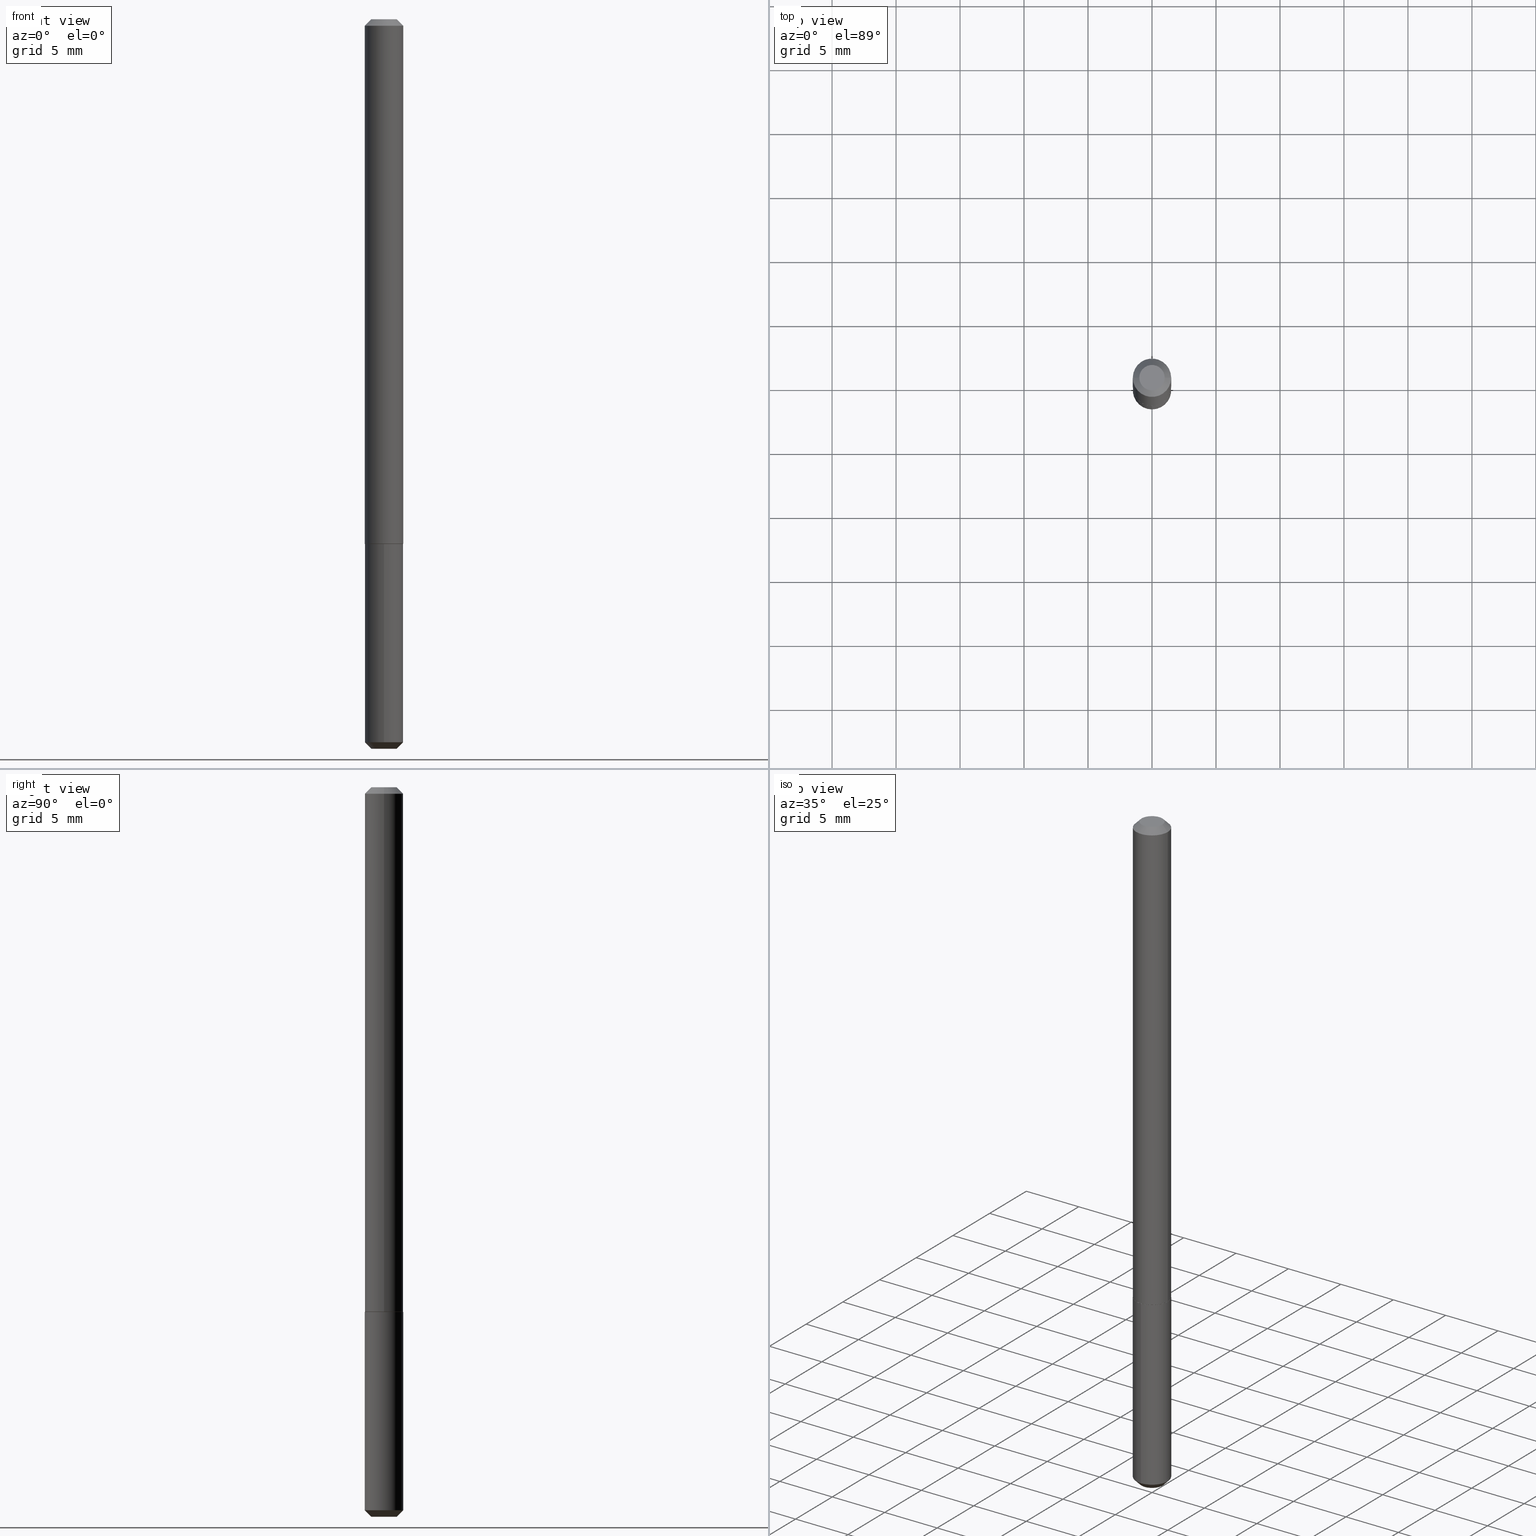
[diagram: canonical four-view strip — front | top / right | iso, engineering-drawing reading convention]
A machine part, canonical four-view strip (front | top / right | iso — engineering-drawing reading convention). The complete STEP part file that produces these views, byte-faithful:
ISO-10303-21;
HEADER;
FILE_DESCRIPTION (( 'STEP AP203' ),
    '1' );
FILE_NAME ('81009.STEP',
    '2024-04-19T13:36:22',
    ( '' ),
    ( '' ),
    'SwSTEP 2.0',
    'SolidWorks 2023',
    '' );
FILE_SCHEMA (( 'CONFIG_CONTROL_DESIGN' ));
ENDSEC;

DATA;
#1 = ORIENTED_EDGE ( 'NONE', *, *, #39, .F. ) ;
#2 = EDGE_CURVE ( 'NONE', #263, #289, #342, .T. ) ;
#3 = CARTESIAN_POINT ( 'NONE',  ( 0.05855000000000011584, -6.044801641939135704E-15, -1.614199999999999413 ) ) ;
#4 = CONICAL_SURFACE ( 'NONE', #132, 0.05904999999999999832, 0.7853981633974468357 ) ;
#5 = CARTESIAN_POINT ( 'NONE',  ( 5.487876547960064752E-29, -7.835233272497902340E-15, -2.244099999999999984 ) ) ;
#6 = CARTESIAN_POINT ( 'NONE',  ( 0.05905000000000018567, -6.046547382608559574E-15, -1.613700000000000134 ) ) ;
#7 = ORGANIZATION ( 'UNSPECIFIED', 'UNSPECIFIED', '' ) ;
#8 = CYLINDRICAL_SURFACE ( 'NONE', #240, 0.05905000000000009547 ) ;
#9 = CIRCLE ( 'NONE', #382, 0.05855000000000011584 ) ;
#10 = EDGE_CURVE ( 'NONE', #20, #60, #349, .T. ) ;
#11 = PERSON_AND_ORGANIZATION_ROLE ( 'design_supplier' ) ;
#12 = CARTESIAN_POINT ( 'NONE',  ( 3.947475746944045709E-29, -5.635949177160603791E-15, -1.614199999999999413 ) ) ;
#13 = EDGE_LOOP ( 'NONE', ( #120, #62, #279, #117 ) ) ;
#14 = COORDINATED_UNIVERSAL_TIME_OFFSET ( 5, 0, .BEHIND. ) ;
#15 = EDGE_LOOP ( 'NONE', ( #329, #169, #213, #18 ) ) ;
#16 = AXIS2_PLACEMENT_3D ( 'NONE', #228, #204, #74 ) ;
#17 = DATE_AND_TIME ( #223, #280 ) ;
#18 = ORIENTED_EDGE ( 'NONE', *, *, #412, .F. ) ;
#19 = DIRECTION ( 'NONE',  ( -6.982962677686265922E-15, -1.000000000000000000, 4.626330217890369336E-15 ) ) ;
#20 = VERTEX_POINT ( 'NONE', #346 ) ;
#21 = CARTESIAN_POINT ( 'NONE',  ( 4.195754854663939737E-16, 0.05904999999999229615, -2.224100000000000410 ) ) ;
#22 = FACE_OUTER_BOUND ( 'NONE', #75, .T. ) ;
#23 = DESIGN_CONTEXT ( 'detailed design', #352, 'design' ) ;
#24 = CONICAL_SURFACE ( 'NONE', #126, 0.05904999999999999832, 0.7853981633974449483 ) ;
#25 = CARTESIAN_POINT ( 'NONE',  ( 0.000000000000000000, 0.000000000000000000, 0.000000000000000000 ) ) ;
#26 = DIRECTION ( 'NONE',  ( -2.445468806185136597E-29, 3.491481338843145583E-15, 1.000000000000000000 ) ) ;
#27 = PLANE ( 'NONE',  #393 ) ;
#28 = EDGE_CURVE ( 'NONE', #315, #79, #317, .T. ) ;
#29 = DIRECTION ( 'NONE',  ( -2.438088387897960049E-29, 3.491481338843145188E-15, 1.000000000000000000 ) ) ;
#30 = APPROVAL_STATUS ( 'not_yet_approved' ) ;
#31 = ORIENTED_EDGE ( 'NONE', *, *, #2, .F. ) ;
#32 = LOCAL_TIME ( 9, 36, 22.00000000000000000, #238 ) ;
#33 = DIRECTION ( 'NONE',  ( -2.445468806185136877E-29, 3.491481338843145188E-15, 1.000000000000000000 ) ) ;
#34 = VERTEX_POINT ( 'NONE', #409 ) ;
#35 = PERSON_AND_ORGANIZATION ( #249, #7 ) ;
#36 = DIRECTION ( 'NONE',  ( -2.446576090179258832E-29, 3.489895645140871787E-15, 1.000000000000000000 ) ) ;
#37 = ORIENTED_EDGE ( 'NONE', *, *, #227, .T. ) ;
#38 = ADVANCED_FACE ( 'NONE', ( #110 ), #49, .T. ) ;
#39 = EDGE_CURVE ( 'NONE', #315, #289, #283, .T. ) ;
#40 = DIRECTION ( 'NONE',  ( 1.000000000000000000, -6.982962677686266711E-15, 0.000000000000000000 ) ) ;
#41 = DIRECTION ( 'NONE',  ( 1.000000000000000000, -6.982962677686266711E-15, 0.000000000000000000 ) ) ;
#42 = VECTOR ( 'NONE', #33, 39.37007874015748143 ) ;
#43 = PERSON_AND_ORGANIZATION ( #249, #7 ) ;
#44 = VERTEX_POINT ( 'NONE', #219 ) ;
#45 = ADVANCED_FACE ( 'NONE', ( #70 ), #8, .T. ) ;
#46 = COORDINATED_UNIVERSAL_TIME_OFFSET ( 5, 0, .BEHIND. ) ;
#47 = ORIENTED_EDGE ( 'NONE', *, *, #397, .T. ) ;
#48 = DIRECTION ( 'NONE',  ( -2.446576090179258832E-29, 3.489895645140871393E-15, 1.000000000000000000 ) ) ;
#49 = CONICAL_SURFACE ( 'NONE', #114, 0.05904999999999999832, 0.7853981633974468357 ) ;
#50 = DIRECTION ( 'NONE',  ( -2.446576090179258832E-29, 3.489895645140871393E-15, 1.000000000000000000 ) ) ;
#51 = APPROVAL_ROLE ( '' ) ;
#52 = CARTESIAN_POINT ( 'NONE',  ( 4.890937612370306439E-31, -6.982962677686338448E-17, -0.02000000000000013572 ) ) ;
#53 = DIRECTION ( 'NONE',  ( -2.446576090179258832E-29, 3.489895645140871393E-15, 1.000000000000000000 ) ) ;
#54 = ORIENTED_EDGE ( 'NONE', *, *, #39, .T. ) ;
#55 = CC_DESIGN_PERSON_AND_ORGANIZATION_ASSIGNMENT ( #193, #325, ( #66 ) ) ;
#56 = AXIS2_PLACEMENT_3D ( 'NONE', #129, #319, #41 ) ;
#57 = FACE_OUTER_BOUND ( 'NONE', #83, .T. ) ;
#58 = CIRCLE ( 'NONE', #372, 0.05904999999999999832 ) ;
#59 = APPROVAL_ROLE ( '' ) ;
#60 = VERTEX_POINT ( 'NONE', #339 ) ;
#61 = CARTESIAN_POINT ( 'NONE',  ( -0.05855000000000011584, -5.217277178198954785E-15, -1.614199999999999413 ) ) ;
#62 = ORIENTED_EDGE ( 'NONE', *, *, #109, .T. ) ;
#63 = DIRECTION ( 'NONE',  ( -2.446576090179258832E-29, 3.489895645140871393E-15, 1.000000000000000000 ) ) ;
#64 = ORIENTED_EDGE ( 'NONE', *, *, #377, .T. ) ;
#65 = CARTESIAN_POINT ( 'NONE',  ( 3.946253012540955150E-29, -5.634203436491184654E-15, -1.613700000000000134 ) ) ;
#66 = SECURITY_CLASSIFICATION ( '', '', #128 ) ;
#67 = EDGE_CURVE ( 'NONE', #244, #79, #307, .T. ) ;
#68 = CARTESIAN_POINT ( 'NONE',  ( 3.946253012540955150E-29, -5.634203436491184654E-15, -1.613700000000000134 ) ) ;
#69 = CLOSED_SHELL ( 'NONE', ( #245, #384, #38, #184, #72, #357 ) ) ;
#70 = FACE_OUTER_BOUND ( 'NONE', #235, .T. ) ;
#71 = PERSON_AND_ORGANIZATION ( #249, #7 ) ;
#72 = ADVANCED_FACE ( 'NONE', ( #267 ), #371, .F. ) ;
#73 = APPROVAL_DATE_TIME ( #297, #121 ) ;
#74 = DIRECTION ( 'NONE',  ( 6.982962677686265922E-15, 1.000000000000000000, -3.489895645140871787E-15 ) ) ;
#75 = EDGE_LOOP ( 'NONE', ( #306, #239, #54, #396 ) ) ;
#76 = CC_DESIGN_SECURITY_CLASSIFICATION ( #66, ( #91 ) ) ;
#77 = FACE_OUTER_BOUND ( 'NONE', #13, .T. ) ;
#78 = DATE_AND_TIME ( #403, #398 ) ;
#79 = VERTEX_POINT ( 'NONE', #261 ) ;
#80 = CARTESIAN_POINT ( 'NONE',  ( 3.947475746944047390E-29, -5.635949177160606158E-15, -1.614199999999999857 ) ) ;
#81 = ORIENTED_EDGE ( 'NONE', *, *, #397, .F. ) ;
#82 = CARTESIAN_POINT ( 'NONE',  ( 3.946253012540955150E-29, -5.634203436491184654E-15, -1.613700000000000134 ) ) ;
#83 = EDGE_LOOP ( 'NONE', ( #47, #233, #197, #387 ) ) ;
#84 = DIRECTION ( 'NONE',  ( -2.446576090179258832E-29, 3.489895645140871393E-15, 1.000000000000000000 ) ) ;
#85 = EDGE_LOOP ( 'NONE', ( #203, #324, #146, #383 ) ) ;
#86 = CARTESIAN_POINT ( 'NONE',  ( 0.03905000000000000138, -3.714222401791253338E-16, -1.206277097157893987E-18 ) ) ;
#87 = DATE_AND_TIME ( #376, #285 ) ;
#88 = PRODUCT_DEFINITION ( 'UNKNOWN', '', #91, #23 ) ;
#89 = CARTESIAN_POINT ( 'NONE',  ( -4.123439461173344910E-16, -0.05905000000000563271, -1.614199999999999635 ) ) ;
#90 = EDGE_LOOP ( 'NONE', ( #139, #105 ) ) ;
#91 = PRODUCT_DEFINITION_FORMATION_WITH_SPECIFIED_SOURCE ( 'ANY', '', #284, .NOT_KNOWN. ) ;
#92 = ADVANCED_FACE ( 'NONE', ( #208 ), #144, .F. ) ;
#93 =( CONVERSION_BASED_UNIT ( 'INCH', #392 ) LENGTH_UNIT ( ) NAMED_UNIT ( #308 ) );
#94 = AXIS2_PLACEMENT_3D ( 'NONE', #82, #413, #113 ) ;
#95 = PRODUCT_DEFINITION_SHAPE ( 'NONE', 'NONE',  #88 ) ;
#96 = ADVANCED_FACE ( 'NONE', ( #273 ), #27, .F. ) ;
#97 = COORDINATED_UNIVERSAL_TIME_OFFSET ( 5, 0, .BEHIND. ) ;
#98 = AXIS2_PLACEMENT_3D ( 'NONE', #5, #123, #353 ) ;
#99 = AXIS2_PLACEMENT_3D ( 'NONE', #25, #264, #405 ) ;
#100 = PERSON_AND_ORGANIZATION_ROLE ( 'creator' ) ;
#101 = DIRECTION ( 'NONE',  ( -2.445468806185136597E-29, 3.491481338843145583E-15, 1.000000000000000000 ) ) ;
#102 = EDGE_LOOP ( 'NONE', ( #81, #309 ) ) ;
#103 = FACE_OUTER_BOUND ( 'NONE', #15, .T. ) ;
#104 = DATE_TIME_ROLE ( 'creation_date' ) ;
#105 = ORIENTED_EDGE ( 'NONE', *, *, #156, .T. ) ;
#106 = DIRECTION ( 'NONE',  ( 5.024295867788054501E-15, 0.7071067811865489050, 0.7071067811865461294 ) ) ;
#107 = AXIS2_PLACEMENT_3D ( 'NONE', #226, #361, #224 ) ;
#108 = DIRECTION ( 'NONE',  ( -2.445468806185136597E-29, 3.491481338843145583E-15, 1.000000000000000000 ) ) ;
#109 = EDGE_CURVE ( 'NONE', #277, #44, #354, .T. ) ;
#110 = FACE_OUTER_BOUND ( 'NONE', #130, .T. ) ;
#111 = DIRECTION ( 'NONE',  ( -0.7071067811870545006, 7.493145998872185895E-15, 0.7071067811860405339 ) ) ;
#112 = ORIENTED_EDGE ( 'NONE', *, *, #366, .F. ) ;
#113 = DIRECTION ( 'NONE',  ( 1.000000000000000000, -6.982962677686266711E-15, 0.000000000000000000 ) ) ;
#114 = AXIS2_PLACEMENT_3D ( 'NONE', #302, #368, #217 ) ;
#115 = CALENDAR_DATE ( 2024, 19, 4 ) ;
#116 = DIRECTION ( 'NONE',  ( -0.7071067811865451302, 2.468850131082231817E-15, -0.7071067811865499042 ) ) ;
#117 = ORIENTED_EDGE ( 'NONE', *, *, #156, .F. ) ;
#118 = DIRECTION ( 'NONE',  ( -2.445468806185136597E-29, 3.491481338843145583E-15, 1.000000000000000000 ) ) ;
#119 = CARTESIAN_POINT ( 'NONE',  ( 5.439642504344377685E-29, -7.764436531132022734E-15, -2.224099999999999966 ) ) ;
#120 = ORIENTED_EDGE ( 'NONE', *, *, #391, .F. ) ;
#121 = APPROVAL ( #334, 'UNSPECIFIED' ) ;
#122 = CONICAL_SURFACE ( 'NONE', #363, 0.05904999999999999832, 0.7853981633974449483 ) ;
#123 = DIRECTION ( 'NONE',  ( -2.446576090179258272E-29, 3.489895645140871787E-15, 1.000000000000000000 ) ) ;
#124 = MANIFOLD_SOLID_BREP ( 'Body-Move/Copy2[2]', #406 ) ;
#125 = DIRECTION ( 'NONE',  ( -2.445468806185136877E-29, 3.491481338843145188E-15, 1.000000000000000000 ) ) ;
#126 = AXIS2_PLACEMENT_3D ( 'NONE', #291, #258, #135 ) ;
#127 = VECTOR ( 'NONE', #106, 39.37007874015748143 ) ;
#128 = SECURITY_CLASSIFICATION_LEVEL ( 'unclassified' ) ;
#129 = CARTESIAN_POINT ( 'NONE',  ( 4.890937612370306439E-31, -6.982962677686338448E-17, -0.02000000000000013572 ) ) ;
#130 = EDGE_LOOP ( 'NONE', ( #326, #161, #37, #230 ) ) ;
#131 = EDGE_CURVE ( 'NONE', #335, #177, #218, .T. ) ;
#132 = AXIS2_PLACEMENT_3D ( 'NONE', #119, #242, #386 ) ;
#133 = AXIS2_PLACEMENT_3D ( 'NONE', #212, #151, #300 ) ;
#134 = COORDINATED_UNIVERSAL_TIME_OFFSET ( 5, 0, .BEHIND. ) ;
#135 = DIRECTION ( 'NONE',  ( -1.000000000000000000, 6.982962677686266711E-15, 0.000000000000000000 ) ) ;
#136 = EDGE_LOOP ( 'NONE', ( #378, #243, #164, #112 ) ) ;
#137 = LINE ( 'NONE', #402, #281 ) ;
#138 = PERSON_AND_ORGANIZATION_ROLE ( 'design_owner' ) ;
#139 = ORIENTED_EDGE ( 'NONE', *, *, #131, .T. ) ;
#140 = CYLINDRICAL_SURFACE ( 'NONE', #99, 0.05905000000000009547 ) ;
#141 = CIRCLE ( 'NONE', #350, 0.05855000000000011584 ) ;
#142 = AXIS2_PLACEMENT_3D ( 'NONE', #174, #50, #167 ) ;
#143 = ADVANCED_FACE ( 'NONE', ( #57 ), #275, .T. ) ;
#144 = PLANE ( 'NONE',  #248 ) ;
#145 = APPROVAL_PERSON_ORGANIZATION ( #71, #121, #51 ) ;
#146 = ORIENTED_EDGE ( 'NONE', *, *, #207, .T. ) ;
#147 = LINE ( 'NONE', #375, #127 ) ;
#148 = SHAPE_DEFINITION_REPRESENTATION ( #95, #154 ) ;
#149 = DIRECTION ( 'NONE',  ( -2.446576090179258832E-29, 3.489895645140871393E-15, 1.000000000000000000 ) ) ;
#150 = ORIENTED_EDGE ( 'NONE', *, *, #311, .F. ) ;
#151 = DIRECTION ( 'NONE',  ( -2.446576090179258832E-29, 3.489895645140871393E-15, 1.000000000000000000 ) ) ;
#152 = DATE_AND_TIME ( #115, #32 ) ;
#153 = ORIENTED_EDGE ( 'NONE', *, *, #170, .T. ) ;
#154 = ADVANCED_BREP_SHAPE_REPRESENTATION ( '81009', ( #259, #124, #222 ), #299 ) ;
#155 = PLANE ( 'NONE',  #98 ) ;
#156 = EDGE_CURVE ( 'NONE', #177, #335, #312, .T. ) ;
#157 = AXIS2_PLACEMENT_3D ( 'NONE', #80, #149, #296 ) ;
#158 = CIRCLE ( 'NONE', #182, 0.03905000000000000138 ) ;
#159 = PERSON_AND_ORGANIZATION ( #249, #7 ) ;
#160 = EDGE_LOOP ( 'NONE', ( #31, #150, #64, #348 ) ) ;
#161 = ORIENTED_EDGE ( 'NONE', *, *, #10, .T. ) ;
#162 = DIRECTION ( 'NONE',  ( 0.000000000000000000, 0.000000000000000000, 1.000000000000000000 ) ) ;
#163 = FACE_OUTER_BOUND ( 'NONE', #85, .T. ) ;
#164 = ORIENTED_EDGE ( 'NONE', *, *, #338, .T. ) ;
#165 = DIRECTION ( 'NONE',  ( 1.000000000000000000, -6.982962677686266711E-15, 0.000000000000000000 ) ) ;
#166 = EDGE_LOOP ( 'NONE', ( #288, #153, #205, #400 ) ) ;
#167 = DIRECTION ( 'NONE',  ( -6.982962677686265922E-15, -1.000000000000000000, 4.626330217890369336E-15 ) ) ;
#168 = CALENDAR_DATE ( 2024, 19, 4 ) ;
#169 = ORIENTED_EDGE ( 'NONE', *, *, #391, .T. ) ;
#170 = EDGE_CURVE ( 'NONE', #20, #277, #147, .T. ) ;
#171 = DIRECTION ( 'NONE',  ( 1.000000000000000000, -6.982962677686266711E-15, 4.876176775795935232E-29 ) ) ;
#172 = CARTESIAN_POINT ( 'NONE',  ( 0.05904999999999999832, -4.749420335452723636E-16, -0.02000000000000013572 ) ) ;
#173 = VECTOR ( 'NONE', #189, 39.37007874015748143 ) ;
#174 = CARTESIAN_POINT ( 'NONE',  ( 3.947475746944047390E-29, -5.635949177160606158E-15, -1.614199999999999857 ) ) ;
#175 = CYLINDRICAL_SURFACE ( 'NONE', #181, 0.05904999999999999832 ) ;
#176 = APPROVAL ( #290, 'UNSPECIFIED' ) ;
#177 = VERTEX_POINT ( 'NONE', #234 ) ;
#178 = CARTESIAN_POINT ( 'NONE',  ( 5.439642504344377685E-29, -7.764436531132022734E-15, -2.224099999999999966 ) ) ;
#179 = LINE ( 'NONE', #183, #190 ) ;
#180 = ORIENTED_EDGE ( 'NONE', *, *, #282, .T. ) ;
#181 = AXIS2_PLACEMENT_3D ( 'NONE', #241, #48, #408 ) ;
#182 = AXIS2_PLACEMENT_3D ( 'NONE', #225, #367, #196 ) ;
#183 = CARTESIAN_POINT ( 'NONE',  ( -0.05904999999999999832, 3.425143193405106359E-16, -0.02000000000000013572 ) ) ;
#184 = ADVANCED_FACE ( 'NONE', ( #77 ), #175, .T. ) ;
#185 = APPLICATION_CONTEXT ( 'configuration controlled 3d designs of mechanical parts and assemblies' ) ;
#186 = CIRCLE ( 'NONE', #56, 0.05904999999999999832 ) ;
#187 = AXIS2_PLACEMENT_3D ( 'NONE', #65, #26, #269 ) ;
#188 = CC_DESIGN_PERSON_AND_ORGANIZATION_ASSIGNMENT ( #265, #100, ( #88 ) ) ;
#189 = DIRECTION ( 'NONE',  ( 0.7071067811870545006, -2.468850131087567278E-15, 0.7071067811860405339 ) ) ;
#190 = VECTOR ( 'NONE', #116, 39.37007874015748143 ) ;
#191 = APPROVAL_PERSON_ORGANIZATION ( #35, #316, #59 ) ;
#192 = CC_DESIGN_DATE_AND_TIME_ASSIGNMENT ( #78, #104, ( #88 ) ) ;
#193 = PERSON_AND_ORGANIZATION ( #249, #7 ) ;
#194 = ORIENTED_EDGE ( 'NONE', *, *, #351, .F. ) ;
#195 = CARTESIAN_POINT ( 'NONE',  ( 0.000000000000000000, 0.000000000000000000, 0.000000000000000000 ) ) ;
#196 = DIRECTION ( 'NONE',  ( 1.000000000000000000, -6.982962677686266711E-15, 4.876134546707175362E-29 ) ) ;
#197 = ORIENTED_EDGE ( 'NONE', *, *, #28, .F. ) ;
#198 = DIRECTION ( 'NONE',  ( 1.000000000000000000, -6.982962677686265922E-15, 4.876176775795935793E-29 ) ) ;
#199 = FACE_OUTER_BOUND ( 'NONE', #272, .T. ) ;
#200 = VECTOR ( 'NONE', #125, 39.37007874015748143 ) ;
#201 = DIRECTION ( 'NONE',  ( -2.446576090179258832E-29, 3.489895645140871393E-15, 1.000000000000000000 ) ) ;
#202 = FACE_OUTER_BOUND ( 'NONE', #160, .T. ) ;
#203 = ORIENTED_EDGE ( 'NONE', *, *, #282, .F. ) ;
#204 = DIRECTION ( 'NONE',  ( 2.446576090179258272E-29, -3.489895645140871787E-15, -1.000000000000000000 ) ) ;
#205 = ORIENTED_EDGE ( 'NONE', *, *, #268, .F. ) ;
#206 = LOCAL_TIME ( 9, 36, 22.00000000000000000, #14 ) ;
#207 = EDGE_CURVE ( 'NONE', #289, #34, #58, .T. ) ;
#208 = FACE_OUTER_BOUND ( 'NONE', #102, .T. ) ;
#209 = EDGE_LOOP ( 'NONE', ( #374, #180 ) ) ;
#210 = DIRECTION ( 'NONE',  ( -6.982962677686265922E-15, -1.000000000000000000, 4.626330217890369336E-15 ) ) ;
#211 = LINE ( 'NONE', #246, #215 ) ;
#212 = CARTESIAN_POINT ( 'NONE',  ( 5.488574026147962924E-29, -7.834234444034840012E-15, -2.244099999999999984 ) ) ;
#213 = ORIENTED_EDGE ( 'NONE', *, *, #131, .F. ) ;
#214 = APPROVAL_PERSON_ORGANIZATION ( #399, #176, #221 ) ;
#215 = VECTOR ( 'NONE', #345, 39.37007874015748143 ) ;
#216 = CC_DESIGN_DATE_AND_TIME_ASSIGNMENT ( #87, #313, ( #66 ) ) ;
#217 = DIRECTION ( 'NONE',  ( -6.982962677686265922E-15, -1.000000000000000000, 4.626330217890369336E-15 ) ) ;
#218 = CIRCLE ( 'NONE', #332, 0.05904999999999999832 ) ;
#219 = CARTESIAN_POINT ( 'NONE',  ( -4.123439461173191083E-16, -0.05905000000000770050, -2.224099999999999522 ) ) ;
#220 = LINE ( 'NONE', #358, #173 ) ;
#221 = APPROVAL_ROLE ( '' ) ;
#222 = AXIS2_PLACEMENT_3D ( 'NONE', #195, #162, #360 ) ;
#223 = CALENDAR_DATE ( 2024, 19, 4 ) ;
#224 = DIRECTION ( 'NONE',  ( 1.000000000000000000, -6.982962677686266711E-15, 0.000000000000000000 ) ) ;
#225 = CARTESIAN_POINT ( 'NONE',  ( 2.949913012720693739E-47, -4.211693974208529178E-33, -1.206277097160145785E-18 ) ) ;
#226 = CARTESIAN_POINT ( 'NONE',  ( 3.946253012540955150E-29, -5.634203436491184654E-15, -1.613700000000000134 ) ) ;
#227 = EDGE_CURVE ( 'NONE', #60, #44, #137, .T. ) ;
#228 = CARTESIAN_POINT ( 'NONE',  ( 3.947475746944047390E-29, -5.635949177160606158E-15, -1.614199999999999857 ) ) ;
#229 = CC_DESIGN_APPROVAL ( #121, ( #91 ) ) ;
#230 = ORIENTED_EDGE ( 'NONE', *, *, #109, .F. ) ;
#231 = CIRCLE ( 'NONE', #256, 0.03905000000000000138 ) ;
#232 = CARTESIAN_POINT ( 'NONE',  ( 9.206760615268503493E-29, 1.895646094184976386E-15, -1.614199999999999635 ) ) ;
#233 = ORIENTED_EDGE ( 'NONE', *, *, #67, .T. ) ;
#234 = CARTESIAN_POINT ( 'NONE',  ( 4.195754854663935792E-16, 0.05904999999999435700, -1.614200000000000301 ) ) ;
#235 = EDGE_LOOP ( 'NONE', ( #292, #411, #369, #1 ) ) ;
#236 = PRODUCT_RELATED_PRODUCT_CATEGORY ( 'detail', '', ( #284 ) ) ;
#237 = CYLINDRICAL_SURFACE ( 'NONE', #157, 0.05904999999999999832 ) ;
#238 = COORDINATED_UNIVERSAL_TIME_OFFSET ( 5, 0, .BEHIND. ) ;
#239 = ORIENTED_EDGE ( 'NONE', *, *, #366, .T. ) ;
#240 = AXIS2_PLACEMENT_3D ( 'NONE', #253, #270, #171 ) ;
#241 = CARTESIAN_POINT ( 'NONE',  ( 3.947475746944047390E-29, -5.635949177160606158E-15, -1.614199999999999857 ) ) ;
#242 = DIRECTION ( 'NONE',  ( -2.446576090179258832E-29, 3.489895645140871393E-15, 1.000000000000000000 ) ) ;
#243 = ORIENTED_EDGE ( 'NONE', *, *, #303, .T. ) ;
#244 = VERTEX_POINT ( 'NONE', #61 ) ;
#245 = ADVANCED_FACE ( 'NONE', ( #103 ), #237, .T. ) ;
#246 = CARTESIAN_POINT ( 'NONE',  ( 4.195754854663785909E-16, 0.05904999999999436394, -1.614200000000000301 ) ) ;
#247 = AXIS2_PLACEMENT_3D ( 'NONE', #178, #63, #210 ) ;
#248 = AXIS2_PLACEMENT_3D ( 'NONE', #232, #29, #198 ) ;
#249 = PERSON ( 'UNSPECIFIED', 'UNSPECIFIED', 'UNSPECIFIED', ('UNSPECIFIED'), ('UNSPECIFIED'), ('UNSPECIFIED') ) ;
#250 = ADVANCED_FACE ( 'NONE', ( #22 ), #140, .T. ) ;
#251 = CC_DESIGN_APPROVAL ( #316, ( #66 ) ) ;
#252 = VECTOR ( 'NONE', #111, 39.37007874015748143 ) ;
#253 = CARTESIAN_POINT ( 'NONE',  ( 0.000000000000000000, 0.000000000000000000, 0.000000000000000000 ) ) ;
#254 = CARTESIAN_POINT ( 'NONE',  ( 0.05905000000000009547, -4.123439461173747229E-16, 2.879382386107504424E-30 ) ) ;
#255 = ADVANCED_FACE ( 'NONE', ( #202 ), #122, .T. ) ;
#256 = AXIS2_PLACEMENT_3D ( 'NONE', #305, #53, #271 ) ;
#257 = CARTESIAN_POINT ( 'NONE',  ( 2.949913012720693739E-47, -4.211693974208529178E-33, -1.206277097160145785E-18 ) ) ;
#258 = DIRECTION ( 'NONE',  ( 2.445468806185136597E-29, -3.491481338843145583E-15, -1.000000000000000000 ) ) ;
#259 = MANIFOLD_SOLID_BREP ( 'Body-Move/Copy2[1]', #69 ) ;
#260 = CC_DESIGN_PERSON_AND_ORGANIZATION_ASSIGNMENT ( #401, #138, ( #284 ) ) ;
#261 = CARTESIAN_POINT ( 'NONE',  ( -0.05905000000000018567, -5.214627951024844373E-15, -1.613700000000000134 ) ) ;
#262 = APPROVAL_DATE_TIME ( #17, #176 ) ;
#263 = VERTEX_POINT ( 'NONE', #86 ) ;
#264 = DIRECTION ( 'NONE',  ( -2.445468806185136597E-29, 3.491481338843145583E-15, 1.000000000000000000 ) ) ;
#265 = PERSON_AND_ORGANIZATION ( #249, #7 ) ;
#266 = VECTOR ( 'NONE', #36, 39.37007874015748143 ) ;
#267 = FACE_OUTER_BOUND ( 'NONE', #90, .T. ) ;
#268 = EDGE_CURVE ( 'NONE', #44, #277, #301, .T. ) ;
#269 = DIRECTION ( 'NONE',  ( 1.000000000000000000, -6.982962677686266711E-15, 0.000000000000000000 ) ) ;
#270 = DIRECTION ( 'NONE',  ( -2.445468806185136597E-29, 3.491481338843145583E-15, 1.000000000000000000 ) ) ;
#271 = DIRECTION ( 'NONE',  ( -6.982962677686265133E-15, -1.000000000000000000, 0.000000000000000000 ) ) ;
#272 = EDGE_LOOP ( 'NONE', ( #194, #295 ) ) ;
#273 = FACE_OUTER_BOUND ( 'NONE', #209, .T. ) ;
#274 = VERTEX_POINT ( 'NONE', #343 ) ;
#275 = CONICAL_SURFACE ( 'NONE', #94, 0.05905000000000018567, 0.7853981633981652610 ) ;
#276 = FACE_OUTER_BOUND ( 'NONE', #166, .T. ) ;
#277 = VERTEX_POINT ( 'NONE', #21 ) ;
#278 = ADVANCED_FACE ( 'NONE', ( #293 ), #321, .T. ) ;
#279 = ORIENTED_EDGE ( 'NONE', *, *, #412, .T. ) ;
#280 = LOCAL_TIME ( 9, 36, 22.00000000000000000, #97 ) ;
#281 = VECTOR ( 'NONE', #379, 39.37007874015748143 ) ;
#282 = EDGE_CURVE ( 'NONE', #263, #274, #362, .T. ) ;
#283 = LINE ( 'NONE', #254, #200 ) ;
#284 = PRODUCT ( '81009', '81009', '', ( #364 ) ) ;
#285 = LOCAL_TIME ( 9, 36, 22.00000000000000000, #46 ) ;
#286 = CC_DESIGN_PERSON_AND_ORGANIZATION_ASSIGNMENT ( #43, #322, ( #91 ) ) ;
#287 = DIRECTION ( 'NONE',  ( -2.445468806185136597E-29, 3.491481338843145583E-15, 1.000000000000000000 ) ) ;
#288 = ORIENTED_EDGE ( 'NONE', *, *, #351, .T. ) ;
#289 = VERTEX_POINT ( 'NONE', #323 ) ;
#290 = APPROVAL_STATUS ( 'not_yet_approved' ) ;
#291 = CARTESIAN_POINT ( 'NONE',  ( 4.890937612370306439E-31, -6.982962677686338448E-17, -0.02000000000000013572 ) ) ;
#292 = ORIENTED_EDGE ( 'NONE', *, *, #28, .T. ) ;
#293 = FACE_OUTER_BOUND ( 'NONE', #136, .T. ) ;
#294 = DIRECTION ( 'NONE',  ( 2.438088387897960049E-29, -3.491481338843145188E-15, -1.000000000000000000 ) ) ;
#295 = ORIENTED_EDGE ( 'NONE', *, *, #10, .F. ) ;
#296 = DIRECTION ( 'NONE',  ( -6.982962677686265922E-15, -1.000000000000000000, 4.626330217890369336E-15 ) ) ;
#297 = DATE_AND_TIME ( #168, #206 ) ;
#298 = DIRECTION ( 'NONE',  ( 2.445468806185136597E-29, -3.491481338843145583E-15, -1.000000000000000000 ) ) ;
#299 =( GEOMETRIC_REPRESENTATION_CONTEXT ( 3 ) GLOBAL_UNCERTAINTY_ASSIGNED_CONTEXT ( ( #370 ) ) GLOBAL_UNIT_ASSIGNED_CONTEXT ( ( #93, #355, #318 ) ) REPRESENTATION_CONTEXT ( 'NONE', 'WORKASPACE' ) );
#300 = DIRECTION ( 'NONE',  ( -6.982962677686265133E-15, -1.000000000000000000, 0.000000000000000000 ) ) ;
#301 = CIRCLE ( 'NONE', #247, 0.05904999999999999832 ) ;
#302 = CARTESIAN_POINT ( 'NONE',  ( 5.439642504344377685E-29, -7.764436531132022734E-15, -2.224099999999999966 ) ) ;
#303 = EDGE_CURVE ( 'NONE', #244, #380, #141, .T. ) ;
#304 = CARTESIAN_POINT ( 'NONE',  ( 1.474956506360346870E-47, -2.105846987104264589E-33, -6.031385485800728924E-19 ) ) ;
#305 = CARTESIAN_POINT ( 'NONE',  ( 5.488574026147962924E-29, -7.834234444034840012E-15, -2.244099999999999984 ) ) ;
#306 = ORIENTED_EDGE ( 'NONE', *, *, #395, .F. ) ;
#307 = LINE ( 'NONE', #410, #252 ) ;
#308 = DIMENSIONAL_EXPONENTS ( 1.000000000000000000, 0.000000000000000000, 0.000000000000000000, 0.000000000000000000, 0.000000000000000000, 0.000000000000000000, 0.000000000000000000 ) ;
#309 = ORIENTED_EDGE ( 'NONE', *, *, #303, .F. ) ;
#310 = LINE ( 'NONE', #314, #42 ) ;
#311 = EDGE_CURVE ( 'NONE', #274, #263, #158, .T. ) ;
#312 = CIRCLE ( 'NONE', #142, 0.05904999999999999832 ) ;
#313 = DATE_TIME_ROLE ( 'classification_date' ) ;
#314 = CARTESIAN_POINT ( 'NONE',  ( -0.05905000000000009547, 4.195754854663398381E-16, -2.904631170795526446E-30 ) ) ;
#315 = VERTEX_POINT ( 'NONE', #6 ) ;
#316 = APPROVAL ( #30, 'UNSPECIFIED' ) ;
#317 = CIRCLE ( 'NONE', #187, 0.05905000000000018567 ) ;
#318 =( NAMED_UNIT ( * ) SI_UNIT ( $, .STERADIAN. ) SOLID_ANGLE_UNIT ( ) );
#319 = DIRECTION ( 'NONE',  ( -2.445468806185136597E-29, 3.491481338843145583E-15, 1.000000000000000000 ) ) ;
#320 = CC_DESIGN_PERSON_AND_ORGANIZATION_ASSIGNMENT ( #159, #11, ( #91 ) ) ;
#321 = CONICAL_SURFACE ( 'NONE', #107, 0.05905000000000018567, 0.7853981633981652610 ) ;
#322 = PERSON_AND_ORGANIZATION_ROLE ( 'creator' ) ;
#323 = CARTESIAN_POINT ( 'NONE',  ( 0.05904999999999999832, -4.821735728942374295E-16, -0.02000000000000013572 ) ) ;
#324 = ORIENTED_EDGE ( 'NONE', *, *, #2, .T. ) ;
#325 = PERSON_AND_ORGANIZATION_ROLE ( 'classification_officer' ) ;
#326 = ORIENTED_EDGE ( 'NONE', *, *, #170, .F. ) ;
#327 = ADVANCED_FACE ( 'NONE', ( #163 ), #24, .T. ) ;
#328 = APPLICATION_PROTOCOL_DEFINITION ( 'international standard', 'config_control_design', 1994, #352 ) ;
#329 = ORIENTED_EDGE ( 'NONE', *, *, #268, .T. ) ;
#330 = DIRECTION ( 'NONE',  ( -1.000000000000000000, 6.982962677686265922E-15, -4.876176775795935793E-29 ) ) ;
#331 = APPLICATION_PROTOCOL_DEFINITION ( 'international standard', 'config_control_design', 1994, #185 ) ;
#332 = AXIS2_PLACEMENT_3D ( 'NONE', #381, #84, #341 ) ;
#333 = CARTESIAN_POINT ( 'NONE',  ( 5.439642504344377685E-29, -7.764436531132022734E-15, -2.224099999999999966 ) ) ;
#334 = APPROVAL_STATUS ( 'not_yet_approved' ) ;
#335 = VERTEX_POINT ( 'NONE', #394 ) ;
#336 = CARTESIAN_POINT ( 'NONE',  ( 4.890937612370306439E-31, -6.982962677686338448E-17, -0.02000000000000013572 ) ) ;
#337 = APPROVAL_DATE_TIME ( #152, #316 ) ;
#338 = EDGE_CURVE ( 'NONE', #380, #315, #220, .T. ) ;
#339 = CARTESIAN_POINT ( 'NONE',  ( -2.726846925635937445E-16, -0.03905000000000783539, -2.244099999999999984 ) ) ;
#340 = CC_DESIGN_APPROVAL ( #176, ( #88 ) ) ;
#341 = DIRECTION ( 'NONE',  ( -6.982962677686265922E-15, -1.000000000000000000, 4.626330217890369336E-15 ) ) ;
#342 = LINE ( 'NONE', #172, #415 ) ;
#343 = CARTESIAN_POINT ( 'NONE',  ( -0.03905000000000000138, 3.075995059520796770E-16, -1.206277097162174752E-18 ) ) ;
#344 = EDGE_CURVE ( 'NONE', #34, #289, #186, .T. ) ;
#345 = DIRECTION ( 'NONE',  ( -2.446576090179258832E-29, 3.489895645140871787E-15, 1.000000000000000000 ) ) ;
#346 = CARTESIAN_POINT ( 'NONE',  ( 3.485212118903841385E-16, 0.03904999999999216043, -2.244099999999999984 ) ) ;
#347 = LINE ( 'NONE', #89, #266 ) ;
#348 = ORIENTED_EDGE ( 'NONE', *, *, #344, .T. ) ;
#349 = CIRCLE ( 'NONE', #133, 0.03905000000000000138 ) ;
#350 = AXIS2_PLACEMENT_3D ( 'NONE', #12, #287, #365 ) ;
#351 = EDGE_CURVE ( 'NONE', #60, #20, #231, .T. ) ;
#352 = APPLICATION_CONTEXT ( 'configuration controlled 3d designs of mechanical parts and assemblies' ) ;
#353 = DIRECTION ( 'NONE',  ( -6.982962677686265922E-15, -1.000000000000000000, 3.489895645140871787E-15 ) ) ;
#354 = CIRCLE ( 'NONE', #373, 0.05904999999999999832 ) ;
#355 =( NAMED_UNIT ( * ) PLANE_ANGLE_UNIT ( ) SI_UNIT ( $, .RADIAN. ) );
#356 = DIRECTION ( 'NONE',  ( 1.000000000000000000, -6.982962677686266711E-15, 4.876134546707175362E-29 ) ) ;
#357 = ADVANCED_FACE ( 'NONE', ( #199 ), #155, .F. ) ;
#358 = CARTESIAN_POINT ( 'NONE',  ( 0.05905000000000018567, -6.046547382608559574E-15, -1.613700000000000134 ) ) ;
#359 =( LENGTH_UNIT ( ) NAMED_UNIT ( * ) SI_UNIT ( $, .METRE. ) );
#360 = DIRECTION ( 'NONE',  ( 1.000000000000000000, 0.000000000000000000, 0.000000000000000000 ) ) ;
#361 = DIRECTION ( 'NONE',  ( -2.445468806185136597E-29, 3.491481338843145583E-15, 1.000000000000000000 ) ) ;
#362 = CIRCLE ( 'NONE', #390, 0.03905000000000000138 ) ;
#363 = AXIS2_PLACEMENT_3D ( 'NONE', #52, #298, #385 ) ;
#364 = MECHANICAL_CONTEXT ( 'NONE', #185, 'mechanical' ) ;
#365 = DIRECTION ( 'NONE',  ( 1.000000000000000000, -6.982962677686266711E-15, 0.000000000000000000 ) ) ;
#366 = EDGE_CURVE ( 'NONE', #79, #315, #404, .T. ) ;
#367 = DIRECTION ( 'NONE',  ( -2.445468806185136597E-29, 3.491481338843145583E-15, 1.000000000000000000 ) ) ;
#368 = DIRECTION ( 'NONE',  ( -2.446576090179258832E-29, 3.489895645140871393E-15, 1.000000000000000000 ) ) ;
#369 = ORIENTED_EDGE ( 'NONE', *, *, #207, .F. ) ;
#370 = UNCERTAINTY_MEASURE_WITH_UNIT (LENGTH_MEASURE( 1.000000000000000082E-05 ), #93, 'distance_accuracy_value', 'NONE');
#371 = PLANE ( 'NONE',  #16 ) ;
#372 = AXIS2_PLACEMENT_3D ( 'NONE', #336, #108, #165 ) ;
#373 = AXIS2_PLACEMENT_3D ( 'NONE', #333, #201, #19 ) ;
#374 = ORIENTED_EDGE ( 'NONE', *, *, #311, .T. ) ;
#375 = CARTESIAN_POINT ( 'NONE',  ( 4.195754854663934806E-16, 0.05904999999999223370, -2.224100000000000410 ) ) ;
#376 = CALENDAR_DATE ( 2024, 19, 4 ) ;
#377 = EDGE_CURVE ( 'NONE', #274, #34, #179, .T. ) ;
#378 = ORIENTED_EDGE ( 'NONE', *, *, #67, .F. ) ;
#379 = DIRECTION ( 'NONE',  ( -4.937700262164540154E-15, -0.7071067811865440200, 0.7071067811865510144 ) ) ;
#380 = VERTEX_POINT ( 'NONE', #3 ) ;
#381 = CARTESIAN_POINT ( 'NONE',  ( 3.947475746944047390E-29, -5.635949177160606158E-15, -1.614199999999999857 ) ) ;
#382 = AXIS2_PLACEMENT_3D ( 'NONE', #416, #118, #388 ) ;
#383 = ORIENTED_EDGE ( 'NONE', *, *, #377, .F. ) ;
#384 = ADVANCED_FACE ( 'NONE', ( #276 ), #4, .T. ) ;
#385 = DIRECTION ( 'NONE',  ( -1.000000000000000000, 6.982962677686266711E-15, 0.000000000000000000 ) ) ;
#386 = DIRECTION ( 'NONE',  ( -6.982962677686265922E-15, -1.000000000000000000, 4.626330217890369336E-15 ) ) ;
#387 = ORIENTED_EDGE ( 'NONE', *, *, #338, .F. ) ;
#388 = DIRECTION ( 'NONE',  ( 1.000000000000000000, -6.982962677686266711E-15, 0.000000000000000000 ) ) ;
#389 = DIRECTION ( 'NONE',  ( -2.445468806185136597E-29, 3.491481338843145583E-15, 1.000000000000000000 ) ) ;
#390 = AXIS2_PLACEMENT_3D ( 'NONE', #257, #101, #356 ) ;
#391 = EDGE_CURVE ( 'NONE', #277, #177, #211, .T. ) ;
#392 = LENGTH_MEASURE_WITH_UNIT ( LENGTH_MEASURE( 0.02539999999999999897 ), #359 );
#393 = AXIS2_PLACEMENT_3D ( 'NONE', #304, #294, #330 ) ;
#394 = CARTESIAN_POINT ( 'NONE',  ( -4.123439461173344910E-16, -0.05905000000000563271, -1.614199999999999635 ) ) ;
#395 = EDGE_CURVE ( 'NONE', #79, #34, #310, .T. ) ;
#396 = ORIENTED_EDGE ( 'NONE', *, *, #344, .F. ) ;
#397 = EDGE_CURVE ( 'NONE', #380, #244, #9, .T. ) ;
#398 = LOCAL_TIME ( 9, 36, 22.00000000000000000, #134 ) ;
#399 = PERSON_AND_ORGANIZATION ( #249, #7 ) ;
#400 = ORIENTED_EDGE ( 'NONE', *, *, #227, .F. ) ;
#401 = PERSON_AND_ORGANIZATION ( #249, #7 ) ;
#402 = CARTESIAN_POINT ( 'NONE',  ( -4.123439461173195520E-16, -0.05905000000000776988, -2.224099999999999522 ) ) ;
#403 = CALENDAR_DATE ( 2024, 19, 4 ) ;
#404 = CIRCLE ( 'NONE', #407, 0.05905000000000018567 ) ;
#405 = DIRECTION ( 'NONE',  ( 1.000000000000000000, -6.982962677686266711E-15, 4.876176775795935232E-29 ) ) ;
#406 = CLOSED_SHELL ( 'NONE', ( #327, #45, #143, #92, #278, #250, #255, #96 ) ) ;
#407 = AXIS2_PLACEMENT_3D ( 'NONE', #68, #389, #40 ) ;
#408 = DIRECTION ( 'NONE',  ( -6.982962677686265922E-15, -1.000000000000000000, 4.626330217890369336E-15 ) ) ;
#409 = CARTESIAN_POINT ( 'NONE',  ( -0.05904999999999999832, -2.432441046167682117E-15, -0.02000000000000013572 ) ) ;
#410 = CARTESIAN_POINT ( 'NONE',  ( -0.05905000000000018567, -5.214627951024844373E-15, -1.613700000000000134 ) ) ;
#411 = ORIENTED_EDGE ( 'NONE', *, *, #395, .T. ) ;
#412 = EDGE_CURVE ( 'NONE', #44, #335, #347, .T. ) ;
#413 = DIRECTION ( 'NONE',  ( -2.445468806185136597E-29, 3.491481338843145583E-15, 1.000000000000000000 ) ) ;
#414 = DIRECTION ( 'NONE',  ( 0.7071067811865451302, -7.319954787623248157E-15, -0.7071067811865499042 ) ) ;
#415 = VECTOR ( 'NONE', #414, 39.37007874015748143 ) ;
#416 = CARTESIAN_POINT ( 'NONE',  ( 3.947475746944045709E-29, -5.635949177160603791E-15, -1.614199999999999413 ) ) ;
ENDSEC;
END-ISO-10303-21;
